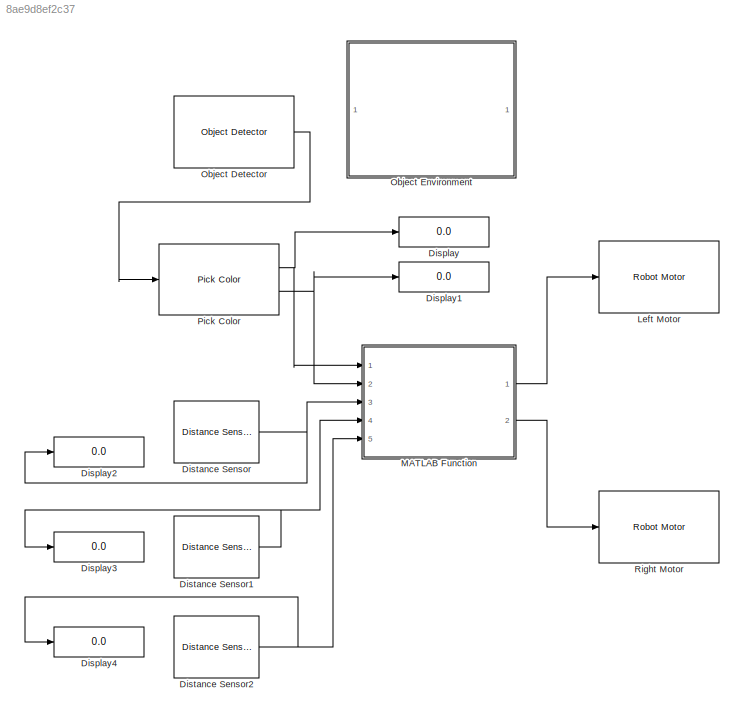
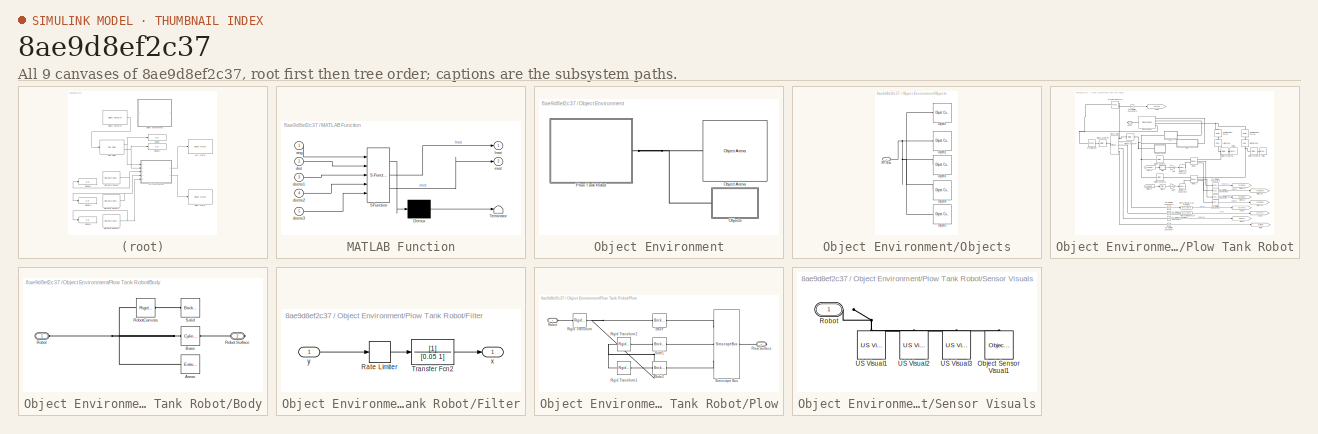
[diagram: thumbnail index - all 9 canvases of the model, root first then tree order]
MODEL slx_8ae9d8ef2c37
KIND model
CONFIG AbsTol = auto
CONFIG EnableMultiTasking = off
CONFIG FixedStep = auto
CONFIG InitFcn = RPInit
CONFIG MaxStep = auto
CONFIG MinStep = auto
CONFIG RelTol = 1e-3
CONFIG SampleTimeConstraint = Unconstrained
CONFIG Solver = ode23t
CONFIG SolverName = ode23t
CONFIG StartTime = 0.0
CONFIG StopTime = inf
WORKSPACE source: mxarray member
WORKSPACE mapForSim: object (value not decoded)
WORKSPACE occGrid: robotics.BinaryOccupancyGrid (value not decoded)
BLOCK [Display] Display
  Decimation = 1
  Ports = [1]
BLOCK [Display] Display1
  Decimation = 1
  Ports = [1]
BLOCK [Display] Display2
  Decimation = 1
  Ports = [1]
BLOCK [Display] Display3
  Decimation = 1
  Ports = [1]
BLOCK [Display] Display4
  Decimation = 1
  Ports = [1]
BLOCK [Reference] Distance Sensor  REF=RoboticsPlayground/Basic Sensors and Actuators/Distance Sensor
  Ports = [0, 1]
  SourceBlock = RoboticsPlayground/Basic Sensors and Actuators/Distance Sensor
  SourceProductName = Robotics Playground
  SourceType = RP Distance Sensor
BLOCK [Reference] Distance Sensor1  REF=RoboticsPlayground/Basic Sensors and Actuators/Distance Sensor
  Ports = [0, 1]
  SourceBlock = RoboticsPlayground/Basic Sensors and Actuators/Distance Sensor
  SourceProductName = Robotics Playground
  SourceType = RP Distance Sensor
BLOCK [Reference] Distance Sensor2  REF=RoboticsPlayground/Basic Sensors and Actuators/Distance Sensor
  Ports = [0, 1]
  SourceBlock = RoboticsPlayground/Basic Sensors and Actuators/Distance Sensor
  SourceProductName = Robotics Playground
  SourceType = RP Distance Sensor
BLOCK [Reference] Left Motor  REF=RoboticsPlayground/Basic Sensors and Actuators/Robot Motor
  Ports = [1]
  SourceBlock = RoboticsPlayground/Basic Sensors and Actuators/Robot Motor
  SourceProductName = Robotics Playground
  SourceType = RP Robot Motor
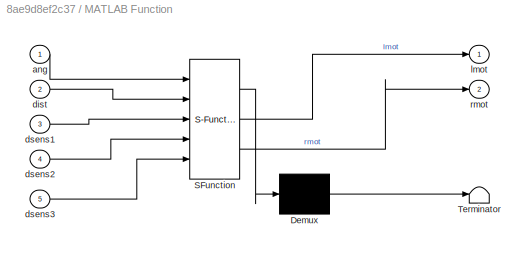
BLOCK [SubSystem] MATLAB Function
  ErrorFcn = Stateflow.Translate.translate
  PermitHierarchicalResolution = ExplicitOnly
  Ports = [5, 2]
  RequestExecContextInheritance = off
  SFBlockType = MATLAB Function
  TreatAsAtomicUnit = on
BLOCK [Demux] MATLAB Function/ Demux 
  Outputs = 1
  Ports = [1, 1]
BLOCK [S-Function] MATLAB Function/ SFunction 
  EnableBusSupport = on
  FunctionName = sf_sfun
  PortCounts = [5 3]
  Ports = [5, 3]
  SFcnIsStateOwnerBlock = off
  SFunctionDeploymentMode = off
  Tag = Stateflow S-Function 2
BLOCK [Terminator] MATLAB Function/ Terminator 
BLOCK [Inport] MATLAB Function/ang
BLOCK [Inport] MATLAB Function/dist
  Port = 2
BLOCK [Inport] MATLAB Function/dsens1
  Port = 3
BLOCK [Inport] MATLAB Function/dsens2
  Port = 4
BLOCK [Inport] MATLAB Function/dsens3
  Port = 5
BLOCK [Outport] MATLAB Function/lmot
BLOCK [Outport] MATLAB Function/rmot
  Port = 2
BLOCK [Reference] Object Detector  REF=RoboticsPlayground/Advanced Sensors/Object Detector
  Ports = [0, 1]
  SourceBlock = RoboticsPlayground/Advanced Sensors/Object Detector
  SourceProductName = Robotics Playground
  SourceType = RP Object Sensor
BLOCK [SubSystem] Object Environment
  CopyFcn = set_param(gcs,'InitFcn','RPInit');\nset_param(gcs,'Solver','ode23t');\nset_param(gcs, 'EnablePacing', 'on')\nset_param(gcs, 'PacingRate', 1)
  Ports = []
  RequestExecContextInheritance = off
BLOCK [Reference] Object Environment/Object Arena  REF=RP_Simulator_Components/Object Arena
  Ports = [0, 0, 0, 0, 0, 1]
  SourceBlock = RP_Simulator_Components/Object Arena
  SourceType = RP Grid Arena
BLOCK [SubSystem] Object Environment/Objects
  Ports = [0, 0, 0, 0, 0, 1]
  RequestExecContextInheritance = off
BLOCK [Reference] Object Environment/Objects/Object1  REF=RP_Simulator_Components/Object Contact-Plow Robot
  Ports = [0, 0, 0, 0, 0, 1]
  SourceBlock = RP_Simulator_Components/Object Contact-Plow Robot
  SourceType = RP Rectangle-Disc obstacle
BLOCK [Reference] Object Environment/Objects/Object2  REF=RP_Simulator_Components/Object Contact-Plow Robot
  Commented = on
  Ports = [0, 0, 0, 0, 0, 1]
  SourceBlock = RP_Simulator_Components/Object Contact-Plow Robot
  SourceType = RP Rectangle-Disc obstacle
BLOCK [Reference] Object Environment/Objects/Object3  REF=RP_Simulator_Components/Object Contact-Plow Robot
  Commented = on
  Ports = [0, 0, 0, 0, 0, 1]
  SourceBlock = RP_Simulator_Components/Object Contact-Plow Robot
  SourceType = RP Rectangle-Disc obstacle
BLOCK [Reference] Object Environment/Objects/Object4  REF=RP_Simulator_Components/Object Contact-Plow Robot
  Commented = on
  Ports = [0, 0, 0, 0, 0, 1]
  SourceBlock = RP_Simulator_Components/Object Contact-Plow Robot
  SourceType = RP Rectangle-Disc obstacle
BLOCK [Reference] Object Environment/Objects/Object5  REF=RP_Simulator_Components/Object Contact-Plow Robot
  Commented = on
  Ports = [0, 0, 0, 0, 0, 1]
  SourceBlock = RP_Simulator_Components/Object Contact-Plow Robot
  SourceType = RP Rectangle-Disc obstacle
BLOCK [PMIOPort] Object Environment/Objects/RP-Bus
  Side = Left
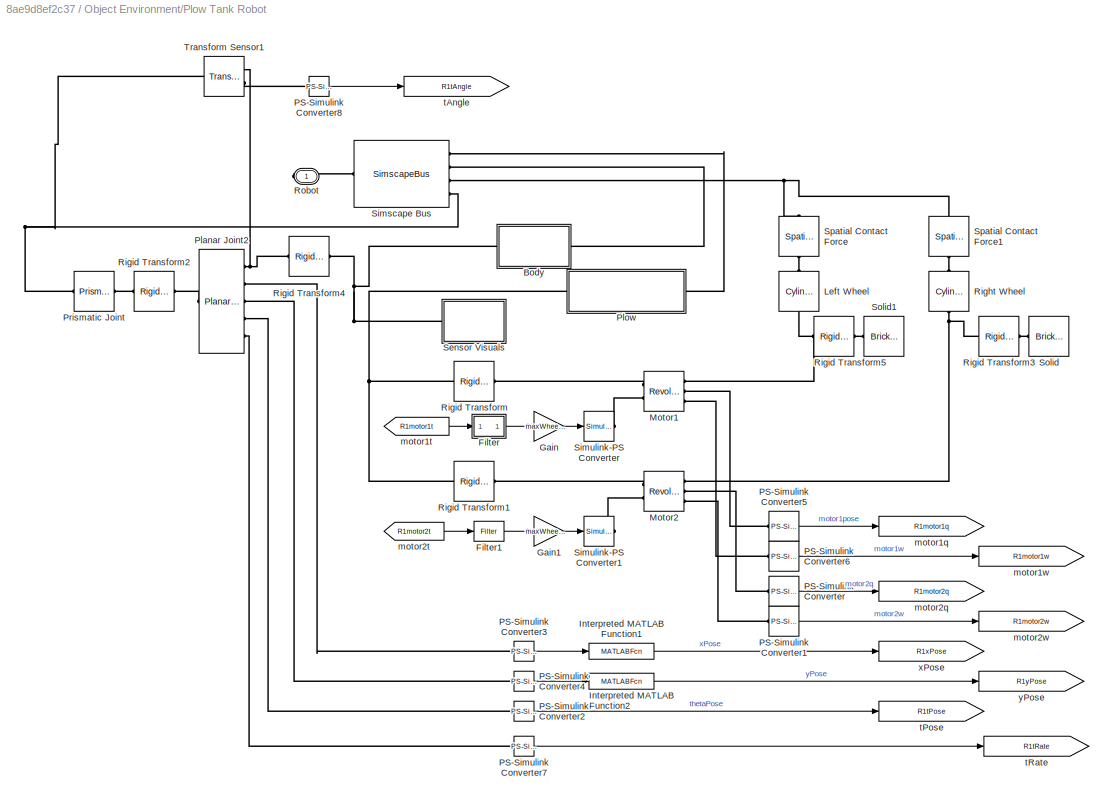
BLOCK [SubSystem] Object Environment/Plow Tank Robot
  AncestorBlock = RP_Simulator_Components/Plow Tank Robot
  Ports = [0, 0, 0, 0, 0, 0, 1]
  RequestExecContextInheritance = off
BLOCK [SubSystem] Object Environment/Plow Tank Robot/Body
  Ports = [0, 0, 0, 0, 0, 1, 1]
  RequestExecContextInheritance = off
BLOCK [Reference] Object Environment/Plow Tank Robot/Body/Arrow  REF=sm_lib/Body Elements/Extruded Solid
  Ports = [0, 0, 0, 0, 0, 0, 1]
  SourceBlock = sm_lib/Body Elements/Extruded Solid
  SourceProductBaseCode = MS
  SourceType = Extruded Solid
BLOCK [Reference] Object Environment/Plow Tank Robot/Body/Base  REF=sm_lib/Body Elements/Cylindrical Solid
  Ports = [0, 0, 0, 0, 0, 1, 1]
  SourceBlock = sm_lib/Body Elements/Cylindrical Solid
  SourceProductBaseCode = MS
  SourceType = Cylindrical Solid
BLOCK [PMIOPort] Object Environment/Plow Tank Robot/Body/Robot
  Side = Left
BLOCK [PMIOPort] Object Environment/Plow Tank Robot/Body/Robot Surface
  Port = 2
  Side = Right
BLOCK [Reference] Object Environment/Plow Tank Robot/Body/RobotCamera  REF=sm_lib/Frames and
Transforms/Rigid
Transform
  Ports = [0, 0, 0, 0, 0, 1, 1]
  SourceBlock = sm_lib/Frames and\nTransforms/Rigid\nTransform
  SourceProductBaseCode = MS
  SourceType = Rigid\nTransform
BLOCK [Reference] Object Environment/Plow Tank Robot/Body/Solid  REF=sm_lib/Body Elements/Brick Solid
  Ports = [0, 0, 0, 0, 0, 0, 1]
  SourceBlock = sm_lib/Body Elements/Brick Solid
  SourceProductBaseCode = MS
  SourceType = Brick Solid
BLOCK [SubSystem] Object Environment/Plow Tank Robot/Filter
  Ports = [1, 1]
  RequestExecContextInheritance = off
BLOCK [RateLimiter] Object Environment/Plow Tank Robot/Filter/Rate Limiter
  FallingSlewLimit = -300
  RisingSlewLimit = 300
  SampleTimeMode = inherited
BLOCK [TransferFcn] Object Environment/Plow Tank Robot/Filter/Transfer Fcn2
  Denominator = [0.05 1]
BLOCK [Outport] Object Environment/Plow Tank Robot/Filter/x
  VectorParamsAs1DForOutWhenUnconnected = off
BLOCK [Inport] Object Environment/Plow Tank Robot/Filter/y
BLOCK [Reference] Object Environment/Plow Tank Robot/Filter1  REF=RP_Simulator_Components/Contact Tank Robot/Filter
  Ports = [1, 1]
  SourceBlock = RP_Simulator_Components/Contact Tank Robot/Filter
  SourceType = SubSystem
BLOCK [Gain] Object Environment/Plow Tank Robot/Gain
  Gain = maxWheelTorque/127
BLOCK [Gain] Object Environment/Plow Tank Robot/Gain1
  Gain = maxWheelTorque/127
BLOCK [MATLABFcn] Object Environment/Plow Tank Robot/Interpreted MATLAB Function1
  MATLABFcn = u+floorSize(1)/2
  Ports = [1, 1]
BLOCK [MATLABFcn] Object Environment/Plow Tank Robot/Interpreted MATLAB Function2
  MATLABFcn = u+floorSize(2)/2
  Ports = [1, 1]
BLOCK [Reference] Object Environment/Plow Tank Robot/Left Wheel  REF=sm_lib/Body Elements/Cylindrical Solid
  NameLocation = right
  Ports = [0, 0, 0, 0, 0, 1, 1]
  SourceBlock = sm_lib/Body Elements/Cylindrical Solid
  SourceProductBaseCode = MS
  SourceType = Cylindrical Solid
BLOCK [Reference] Object Environment/Plow Tank Robot/Motor1  REF=sm_lib/Joints/Revolute Joint
  Ports = [0, 0, 0, 0, 0, 2, 3]
  SourceBlock = sm_lib/Joints/Revolute Joint
  SourceProductBaseCode = MS
  SourceType = Revolute Joint
BLOCK [Reference] Object Environment/Plow Tank Robot/Motor2  REF=sm_lib/Joints/Revolute Joint
  Ports = [0, 0, 0, 0, 0, 2, 3]
  SourceBlock = sm_lib/Joints/Revolute Joint
  SourceProductBaseCode = MS
  SourceType = Revolute Joint
BLOCK [Reference] Object Environment/Plow Tank Robot/PS-Simulink Converter  REF=nesl_utility/PS-Simulink
Converter
  Ports = [0, 1, 0, 0, 0, 1]
  SourceBlock = nesl_utility/PS-Simulink\nConverter
  SourceProductBaseCode = SS
  SourceType = PS-Simulink\nConverter
BLOCK [Reference] Object Environment/Plow Tank Robot/PS-Simulink Converter1  REF=nesl_utility/PS-Simulink
Converter
  Ports = [0, 1, 0, 0, 0, 1]
  SourceBlock = nesl_utility/PS-Simulink\nConverter
  SourceProductBaseCode = SS
  SourceType = PS-Simulink\nConverter
BLOCK [Reference] Object Environment/Plow Tank Robot/PS-Simulink Converter2  REF=nesl_utility/PS-Simulink
Converter
  Ports = [0, 1, 0, 0, 0, 1]
  SourceBlock = nesl_utility/PS-Simulink\nConverter
  SourceProductBaseCode = SS
  SourceType = PS-Simulink\nConverter
BLOCK [Reference] Object Environment/Plow Tank Robot/PS-Simulink Converter3  REF=nesl_utility/PS-Simulink
Converter
  Ports = [0, 1, 0, 0, 0, 1]
  SourceBlock = nesl_utility/PS-Simulink\nConverter
  SourceProductBaseCode = SS
  SourceType = PS-Simulink\nConverter
BLOCK [Reference] Object Environment/Plow Tank Robot/PS-Simulink Converter4  REF=nesl_utility/PS-Simulink
Converter
  Ports = [0, 1, 0, 0, 0, 1]
  SourceBlock = nesl_utility/PS-Simulink\nConverter
  SourceProductBaseCode = SS
  SourceType = PS-Simulink\nConverter
BLOCK [Reference] Object Environment/Plow Tank Robot/PS-Simulink Converter5  REF=nesl_utility/PS-Simulink
Converter
  Ports = [0, 1, 0, 0, 0, 1]
  SourceBlock = nesl_utility/PS-Simulink\nConverter
  SourceProductBaseCode = SS
  SourceType = PS-Simulink\nConverter
BLOCK [Reference] Object Environment/Plow Tank Robot/PS-Simulink Converter6  REF=nesl_utility/PS-Simulink
Converter
  Ports = [0, 1, 0, 0, 0, 1]
  SourceBlock = nesl_utility/PS-Simulink\nConverter
  SourceProductBaseCode = SS
  SourceType = PS-Simulink\nConverter
BLOCK [Reference] Object Environment/Plow Tank Robot/PS-Simulink Converter7  REF=nesl_utility/PS-Simulink
Converter
  Ports = [0, 1, 0, 0, 0, 1]
  SourceBlock = nesl_utility/PS-Simulink\nConverter
  SourceProductBaseCode = SS
  SourceType = PS-Simulink\nConverter
BLOCK [Reference] Object Environment/Plow Tank Robot/PS-Simulink Converter8  REF=nesl_utility/PS-Simulink
Converter
  Ports = [0, 1, 0, 0, 0, 1]
  SourceBlock = nesl_utility/PS-Simulink\nConverter
  SourceProductBaseCode = SS
  SourceType = PS-Simulink\nConverter
BLOCK [Reference] Object Environment/Plow Tank Robot/Planar Joint2  REF=sm_lib/Joints/Planar Joint
  Ports = [0, 0, 0, 0, 0, 1, 5]
  SourceBlock = sm_lib/Joints/Planar Joint
  SourceProductBaseCode = MS
  SourceType = Planar Joint
BLOCK [SubSystem] Object Environment/Plow Tank Robot/Plow
  Ports = [0, 0, 0, 0, 0, 1, 1]
  RequestExecContextInheritance = off
BLOCK [Reference] Object Environment/Plow Tank Robot/Plow/Base  REF=sm_lib/Body Elements/Brick Solid
  Ports = [0, 0, 0, 0, 0, 1, 1]
  SourceBlock = sm_lib/Body Elements/Brick Solid
  SourceProductBaseCode = MS
  SourceType = Brick Solid
BLOCK [PMIOPort] Object Environment/Plow Tank Robot/Plow/Plow Surface
  Port = 2
  Side = Right
BLOCK [Reference] Object Environment/Plow Tank Robot/Plow/Rigid Transform  REF=sm_lib/Frames and
Transforms/Rigid
Transform
  Ports = [0, 0, 0, 0, 0, 1, 1]
  SourceBlock = sm_lib/Frames and\nTransforms/Rigid\nTransform
  SourceProductBaseCode = MS
  SourceType = Rigid\nTransform
BLOCK [Reference] Object Environment/Plow Tank Robot/Plow/Rigid Transform1  REF=sm_lib/Frames and
Transforms/Rigid
Transform
  Ports = [0, 0, 0, 0, 0, 1, 1]
  SourceBlock = sm_lib/Frames and\nTransforms/Rigid\nTransform
  SourceProductBaseCode = MS
  SourceType = Rigid\nTransform
BLOCK [Reference] Object Environment/Plow Tank Robot/Plow/Rigid Transform2  REF=sm_lib/Frames and
Transforms/Rigid
Transform
  Ports = [0, 0, 0, 0, 0, 1, 1]
  SourceBlock = sm_lib/Frames and\nTransforms/Rigid\nTransform
  SourceProductBaseCode = MS
  SourceType = Rigid\nTransform
BLOCK [PMIOPort] Object Environment/Plow Tank Robot/Plow/Robot
  Side = Left
BLOCK [Reference] Object Environment/Plow Tank Robot/Plow/Side1  REF=sm_lib/Body Elements/Brick Solid
  Ports = [0, 0, 0, 0, 0, 1, 1]
  SourceBlock = sm_lib/Body Elements/Brick Solid
  SourceProductBaseCode = MS
  SourceType = Brick Solid
BLOCK [Reference] Object Environment/Plow Tank Robot/Plow/Side2  REF=sm_lib/Body Elements/Brick Solid
  Ports = [0, 0, 0, 0, 0, 1, 1]
  SourceBlock = sm_lib/Body Elements/Brick Solid
  SourceProductBaseCode = MS
  SourceType = Brick Solid
BLOCK [SimscapeBus] Object Environment/Plow Tank Robot/Plow/Simscape Bus
  HierarchyStrings = Base;Side1;Side2
  Ports = [0, 0, 0, 0, 0, 3, 1]
BLOCK [Reference] Object Environment/Plow Tank Robot/Prismatic Joint  REF=sm_lib/Joints/Prismatic
Joint
  Ports = [0, 0, 0, 0, 0, 1, 1]
  SourceBlock = sm_lib/Joints/Prismatic\nJoint
  SourceProductBaseCode = MS
  SourceType = Prismatic\nJoint
BLOCK [Reference] Object Environment/Plow Tank Robot/Right Wheel  REF=sm_lib/Body Elements/Cylindrical Solid
  NameLocation = right
  Ports = [0, 0, 0, 0, 0, 1, 1]
  SourceBlock = sm_lib/Body Elements/Cylindrical Solid
  SourceProductBaseCode = MS
  SourceType = Cylindrical Solid
BLOCK [Reference] Object Environment/Plow Tank Robot/Rigid Transform  REF=sm_lib/Frames and
Transforms/Rigid
Transform
  Ports = [0, 0, 0, 0, 0, 1, 1]
  SourceBlock = sm_lib/Frames and\nTransforms/Rigid\nTransform
  SourceProductBaseCode = MS
  SourceType = Rigid\nTransform
BLOCK [Reference] Object Environment/Plow Tank Robot/Rigid Transform1  REF=sm_lib/Frames and
Transforms/Rigid
Transform
  Ports = [0, 0, 0, 0, 0, 1, 1]
  SourceBlock = sm_lib/Frames and\nTransforms/Rigid\nTransform
  SourceProductBaseCode = MS
  SourceType = Rigid\nTransform
BLOCK [Reference] Object Environment/Plow Tank Robot/Rigid Transform2  REF=sm_lib/Frames and
Transforms/Rigid
Transform
  Ports = [0, 0, 0, 0, 0, 1, 1]
  SourceBlock = sm_lib/Frames and\nTransforms/Rigid\nTransform
  SourceProductBaseCode = MS
  SourceType = Rigid\nTransform
BLOCK [Reference] Object Environment/Plow Tank Robot/Rigid Transform3  REF=sm_lib/Frames and
Transforms/Rigid
Transform
  Ports = [0, 0, 0, 0, 0, 1, 1]
  SourceBlock = sm_lib/Frames and\nTransforms/Rigid\nTransform
  SourceProductBaseCode = MS
  SourceType = Rigid\nTransform
BLOCK [Reference] Object Environment/Plow Tank Robot/Rigid Transform4  REF=sm_lib/Frames and
Transforms/Rigid
Transform
  Ports = [0, 0, 0, 0, 0, 1, 1]
  SourceBlock = sm_lib/Frames and\nTransforms/Rigid\nTransform
  SourceProductBaseCode = MS
  SourceType = Rigid\nTransform
BLOCK [Reference] Object Environment/Plow Tank Robot/Rigid Transform5  REF=sm_lib/Frames and
Transforms/Rigid
Transform
  Ports = [0, 0, 0, 0, 0, 1, 1]
  SourceBlock = sm_lib/Frames and\nTransforms/Rigid\nTransform
  SourceProductBaseCode = MS
  SourceType = Rigid\nTransform
BLOCK [PMIOPort] Object Environment/Plow Tank Robot/Robot
  Side = Right
BLOCK [SubSystem] Object Environment/Plow Tank Robot/Sensor Visuals
  Ports = [0, 0, 0, 0, 0, 1]
  RequestExecContextInheritance = off
BLOCK [Reference] Object Environment/Plow Tank Robot/Sensor Visuals/Object Sensor Visual1  REF=RP_Simulator_Components/Object Sensor Visual
  NameLocation = right
  Ports = [0, 0, 0, 0, 0, 1]
  SourceBlock = RP_Simulator_Components/Object Sensor Visual
  SourceType = RP Object Sensor Visual
BLOCK [PMIOPort] Object Environment/Plow Tank Robot/Sensor Visuals/Robot
  Side = Left
BLOCK [Reference] Object Environment/Plow Tank Robot/Sensor Visuals/US Visual1  REF=RP_Simulator_Components/US Visual
  NameLocation = right
  Ports = [0, 0, 0, 0, 0, 1]
  SourceBlock = RP_Simulator_Components/US Visual
  SourceType = RP US Visual
BLOCK [Reference] Object Environment/Plow Tank Robot/Sensor Visuals/US Visual2  REF=RP_Simulator_Components/US Visual
  NameLocation = right
  Ports = [0, 0, 0, 0, 0, 1]
  SourceBlock = RP_Simulator_Components/US Visual
  SourceType = RP US Visual
BLOCK [Reference] Object Environment/Plow Tank Robot/Sensor Visuals/US Visual3  REF=RP_Simulator_Components/US Visual
  NameLocation = right
  Ports = [0, 0, 0, 0, 0, 1]
  SourceBlock = RP_Simulator_Components/US Visual
  SourceType = RP US Visual
BLOCK [SimscapeBus] Object Environment/Plow Tank Robot/Simscape Bus
  HierarchyStrings = PlowSurface;RobotSurface;FloorSurface;Ref
  NameLocation = top
  Ports = [0, 0, 0, 0, 0, 4, 1]
BLOCK [Reference] Object Environment/Plow Tank Robot/Simulink-PS Converter  REF=nesl_utility/Simulink-PS
Converter
  Ports = [1, 0, 0, 0, 0, 0, 1]
  SourceBlock = nesl_utility/Simulink-PS\nConverter
  SourceProductBaseCode = SS
  SourceType = Simulink-PS\nConverter
BLOCK [Reference] Object Environment/Plow Tank Robot/Simulink-PS Converter1  REF=nesl_utility/Simulink-PS
Converter
  Ports = [1, 0, 0, 0, 0, 0, 1]
  SourceBlock = nesl_utility/Simulink-PS\nConverter
  SourceProductBaseCode = SS
  SourceType = Simulink-PS\nConverter
BLOCK [Reference] Object Environment/Plow Tank Robot/Solid  REF=sm_lib/Body Elements/Brick Solid
  NameLocation = top
  Ports = [0, 0, 0, 0, 0, 0, 1]
  SourceBlock = sm_lib/Body Elements/Brick Solid
  SourceProductBaseCode = MS
  SourceType = Brick Solid
BLOCK [Reference] Object Environment/Plow Tank Robot/Solid1  REF=sm_lib/Body Elements/Brick Solid
  NameLocation = top
  Ports = [0, 0, 0, 0, 0, 0, 1]
  SourceBlock = sm_lib/Body Elements/Brick Solid
  SourceProductBaseCode = MS
  SourceType = Brick Solid
BLOCK [Reference] Object Environment/Plow Tank Robot/Spatial Contact Force  REF=sm_lib/Forces and
Torques/Spatial
Contact Force
  NameLocation = left
  Ports = [0, 0, 0, 0, 0, 1, 1]
  SourceBlock = sm_lib/Forces and\nTorques/Spatial\nContact Force
  SourceProductBaseCode = MS
  SourceType = Spatial\nContact Force
BLOCK [Reference] Object Environment/Plow Tank Robot/Spatial Contact Force1  REF=sm_lib/Forces and
Torques/Spatial
Contact Force
  NameLocation = left
  Ports = [0, 0, 0, 0, 0, 1, 1]
  SourceBlock = sm_lib/Forces and\nTorques/Spatial\nContact Force
  SourceProductBaseCode = MS
  SourceType = Spatial\nContact Force
BLOCK [Reference] Object Environment/Plow Tank Robot/Transform Sensor1  REF=sm_lib/Frames and
Transforms/Transform
Sensor
  Ports = [0, 0, 0, 0, 0, 1, 2]
  SourceBlock = sm_lib/Frames and\nTransforms/Transform\nSensor
  SourceProductBaseCode = MS
  SourceType = Transform\nSensor
BLOCK [Goto] Object Environment/Plow Tank Robot/motor1q
  GotoTag = R1motor1q
  TagVisibility = global
BLOCK [From] Object Environment/Plow Tank Robot/motor1t
  GotoTag = R1motor1t
  TagVisibility = global
BLOCK [Goto] Object Environment/Plow Tank Robot/motor1w
  GotoTag = R1motor1w
  TagVisibility = global
BLOCK [Goto] Object Environment/Plow Tank Robot/motor2q
  GotoTag = R1motor2q
  TagVisibility = global
BLOCK [From] Object Environment/Plow Tank Robot/motor2t
  GotoTag = R1motor2t
  TagVisibility = global
BLOCK [Goto] Object Environment/Plow Tank Robot/motor2w
  GotoTag = R1motor2w
  TagVisibility = global
BLOCK [Goto] Object Environment/Plow Tank Robot/tAngle
  GotoTag = R1tAngle
  TagVisibility = global
BLOCK [Goto] Object Environment/Plow Tank Robot/tPose
  GotoTag = R1tPose
  TagVisibility = global
BLOCK [Goto] Object Environment/Plow Tank Robot/tRate
  GotoTag = R1tRate
  TagVisibility = global
BLOCK [Goto] Object Environment/Plow Tank Robot/xPose
  GotoTag = R1xPose
  TagVisibility = global
BLOCK [Goto] Object Environment/Plow Tank Robot/yPose
  GotoTag = R1yPose
  TagVisibility = global
BLOCK [Reference] Pick Color  REF=RoboticsPlayground/Advanced Sensors/Pick Color
  Ports = [1, 2]
  SourceBlock = RoboticsPlayground/Advanced Sensors/Pick Color
  SourceProductName = Robotics Playground
  SourceType = RP Pick Color
BLOCK [Reference] Right Motor  REF=RoboticsPlayground/Basic Sensors and Actuators/Robot Motor
  Ports = [1]
  SourceBlock = RoboticsPlayground/Basic Sensors and Actuators/Robot Motor
  SourceProductName = Robotics Playground
  SourceType = RP Robot Motor
NET Distance Sensor1:1 -> Display3:1, MATLAB Function:4
NET Distance Sensor2:1 -> Display4:1, MATLAB Function:5
NET Distance Sensor:1 -> Display2:1, MATLAB Function:3
LINE MATLAB Function:1 -> Left Motor:1
LINE MATLAB Function:2 -> Right Motor:1
LINE Object Detector:1 -> Pick Color:1
NET Pick Color:1 -> Display:1, MATLAB Function:1
NET Pick Color:2 -> Display1:1, MATLAB Function:2
note: NET lines group one-source signal fan-out (src -> all destinations, sorted); 1:1 wires keep LINE
CHART MATLAB Function states=1 transitions=1
  STATE_LABEL 'eML_blk_kernel()'
  STATE_LABEL 'SCRIPT:\nfunction [lmot,rmot] = fcn(ang,dist,dsens1,dsens2,dsens3)\n\nif(dsens1<=0.8 || dsens2<=0.8 || dsens3<=0.8)\n    lmot=-127;\n    rmot=127;\nelse\n    if(-10<=ang && ang<=10)\n        lmot=127;\n        rmot=127;\n    elseif(ang>10)\n        lmot=-50;\n        rmot=50;\n    else\n        lmot=50;\n        rmot=-50;\n    end\nend\nend\n'
CHART  states=0 transitions=0
